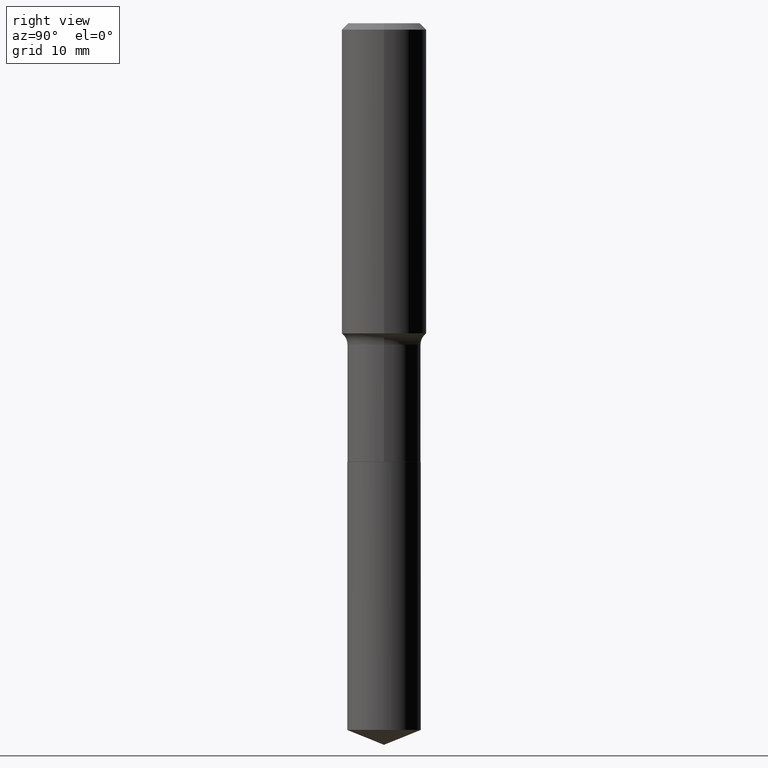
[diagram: clean part render]
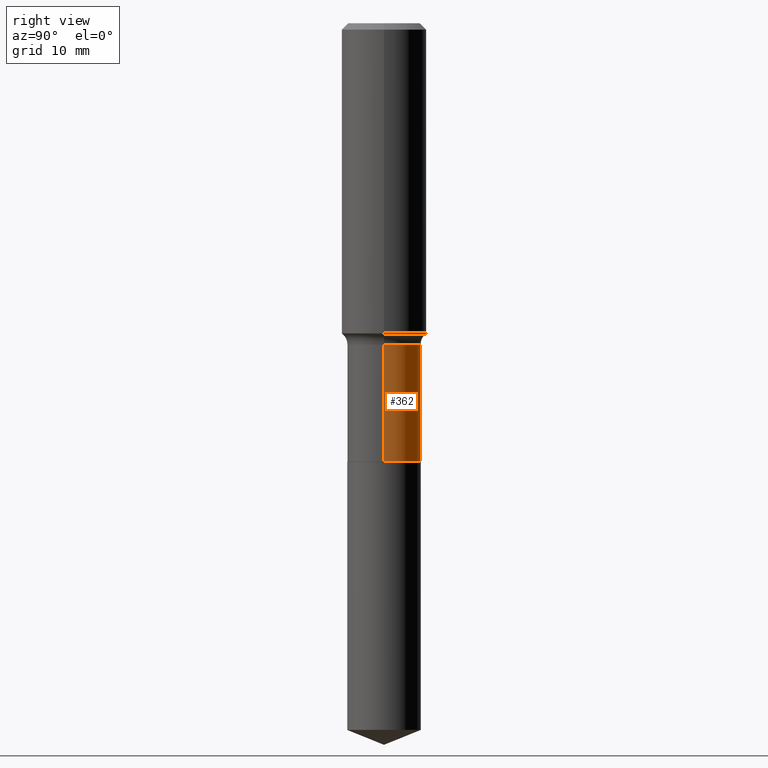
[diagram: same view with one face highlighted and labeled with its STEP entity id]
A machine part, right view. The second image highlights one B-rep face of the part: STEP entity #362.
In plain terms, the highlighted cylindrical surface (partial cylindrical patch) has radius 5.2006 mm, axis along (-0, 0, 1).
Its self-contained STEP definition (entity closure, byte-faithful):
#6 = CIRCLE ( 'NONE', #45, 0.2047499999999999043 ) ;
#26 = VERTEX_POINT ( 'NONE', #295 ) ;
#44 = DIRECTION ( 'NONE',  ( -2.445468806185136597E-29, 3.491481338843145583E-15, 1.000000000000000000 ) ) ;
#45 = AXIS2_PLACEMENT_3D ( 'NONE', #195, #352, #168 ) ;
#51 = LINE ( 'NONE', #173, #400 ) ;
#54 = EDGE_CURVE ( 'NONE', #26, #349, #381, .T. ) ;
#55 = AXIS2_PLACEMENT_3D ( 'NONE', #122, #77, #156 ) ;
#74 = ORIENTED_EDGE ( 'NONE', *, *, #54, .T. ) ;
#77 = DIRECTION ( 'NONE',  ( -2.445468806185136597E-29, 3.491481338843145583E-15, 1.000000000000000000 ) ) ;
#97 = ORIENTED_EDGE ( 'NONE', *, *, #398, .F. ) ;
#107 = CARTESIAN_POINT ( 'NONE',  ( -0.2047499999999999598, 1.454836251468804845E-15, -1.007151959729691630E-29 ) ) ;
#112 = VERTEX_POINT ( 'NONE', #344 ) ;
#121 = EDGE_LOOP ( 'NONE', ( #475, #74, #300, #97 ) ) ;
#122 = CARTESIAN_POINT ( 'NONE',  ( 0.000000000000000000, 0.000000000000000000, 0.000000000000000000 ) ) ;
#131 = VECTOR ( 'NONE', #375, 39.37007874015748143 ) ;
#156 = DIRECTION ( 'NONE',  ( 1.000000000000000000, -6.982962677686266711E-15, 4.876176775795936353E-29 ) ) ;
#161 = DIRECTION ( 'NONE',  ( 1.000000000000000000, -6.982962677686268288E-15, 0.000000000000000000 ) ) ;
#168 = DIRECTION ( 'NONE',  ( 1.000000000000000000, -6.982962677686265922E-15, 0.000000000000000000 ) ) ;
#173 = CARTESIAN_POINT ( 'NONE',  ( 0.2047499999999999598, -1.429761608256262896E-15, 9.983971948442177163E-30 ) ) ;
#188 = VERTEX_POINT ( 'NONE', #273 ) ;
#195 = CARTESIAN_POINT ( 'NONE',  ( 4.374699147384591399E-29, -6.245910967056503960E-15, -1.788900000000000157 ) ) ;
#204 = DIRECTION ( 'NONE',  ( -2.445468806185136877E-29, 3.491481338843145188E-15, 1.000000000000000000 ) ) ;
#208 = CIRCLE ( 'NONE', #285, 0.2047499999999999876 ) ;
#273 = CARTESIAN_POINT ( 'NONE',  ( 0.2047499999999999876, -9.950372667569074950E-15, -2.440399999999999903 ) ) ;
#285 = AXIS2_PLACEMENT_3D ( 'NONE', #388, #44, #161 ) ;
#295 = CARTESIAN_POINT ( 'NONE',  ( -0.2047499999999999876, -5.928424761715852274E-15, -2.440399999999999903 ) ) ;
#300 = ORIENTED_EDGE ( 'NONE', *, *, #354, .F. ) ;
#308 = EDGE_CURVE ( 'NONE', #188, #26, #208, .T. ) ;
#311 = CYLINDRICAL_SURFACE ( 'NONE', #55, 0.2047499999999999598 ) ;
#344 = CARTESIAN_POINT ( 'NONE',  ( 0.2047499999999999043, -7.675672575312766658E-15, -1.788900000000000157 ) ) ;
#345 = FACE_OUTER_BOUND ( 'NONE', #121, .T. ) ;
#349 = VERTEX_POINT ( 'NONE', #421 ) ;
#352 = DIRECTION ( 'NONE',  ( -2.445468806185136597E-29, 3.491481338843145583E-15, 1.000000000000000000 ) ) ;
#354 = EDGE_CURVE ( 'NONE', #112, #349, #6, .T. ) ;
#362 = ADVANCED_FACE ( 'NONE', ( #345 ), #311, .T. ) ;
#375 = DIRECTION ( 'NONE',  ( -2.445468806185136877E-29, 3.491481338843145188E-15, 1.000000000000000000 ) ) ;
#381 = LINE ( 'NONE', #107, #131 ) ;
#388 = CARTESIAN_POINT ( 'NONE',  ( 5.967922074614207358E-29, -8.520611059312812251E-15, -2.440399999999999903 ) ) ;
#398 = EDGE_CURVE ( 'NONE', #188, #112, #51, .T. ) ;
#400 = VECTOR ( 'NONE', #204, 39.37007874015748143 ) ;
#421 = CARTESIAN_POINT ( 'NONE',  ( -0.2047499999999999043, -5.928424761715853063E-15, -1.788900000000000157 ) ) ;
#475 = ORIENTED_EDGE ( 'NONE', *, *, #308, .T. ) ;